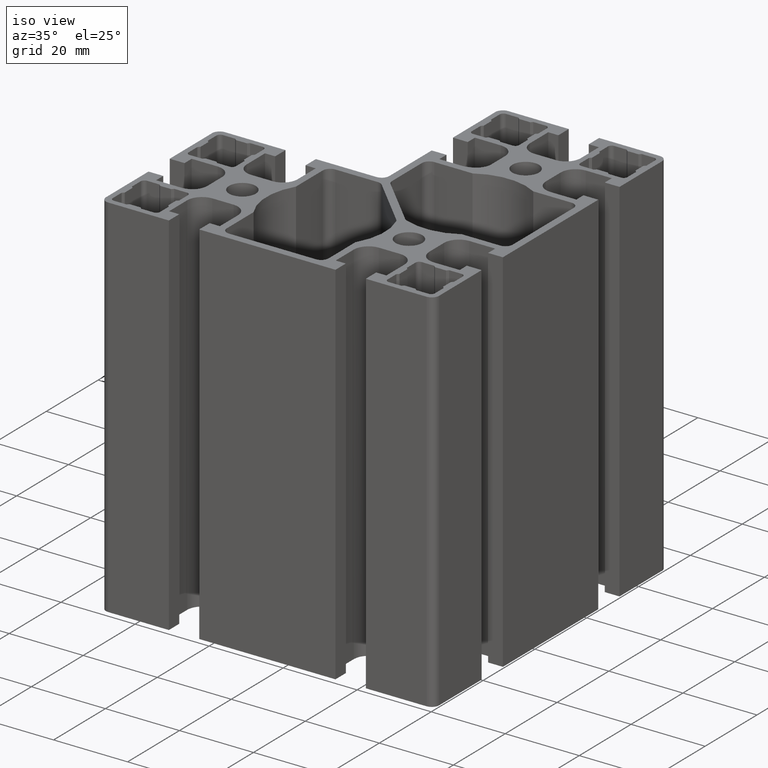
[diagram: clean part render]
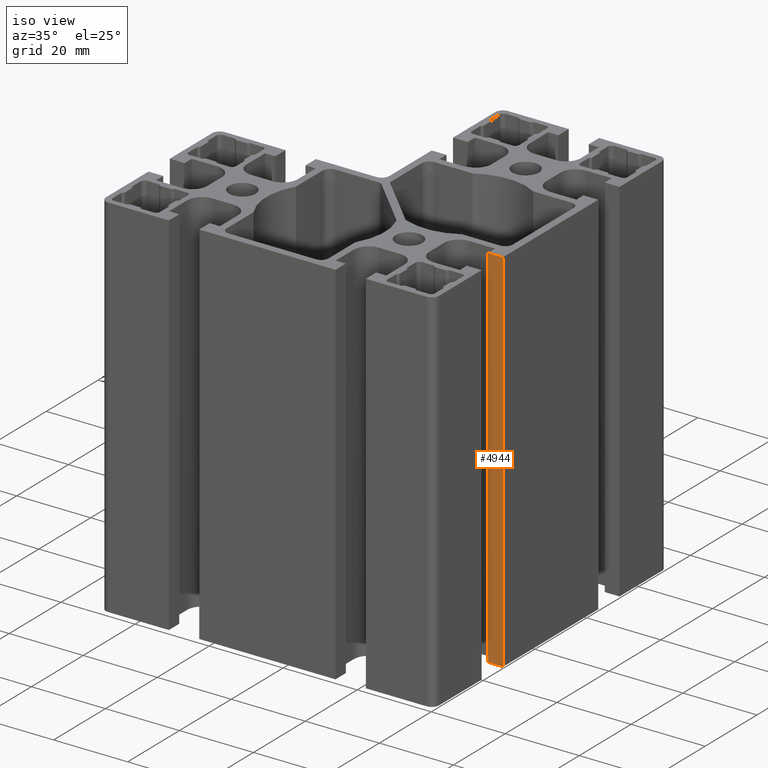
[diagram: same view with one face highlighted and labeled with its STEP entity id]
A machine part, iso view. The second image highlights one B-rep face of the part: STEP entity #4944.
In plain terms, the highlighted planar face has unit normal (0, -1, 0).
Its self-contained STEP definition (entity closure, byte-faithful):
#390=FACE_OUTER_BOUND('',#647,.T.);
#647=EDGE_LOOP('',(#4062,#4063,#4064,#4065));
#1117=LINE('',#7656,#1720);
#1208=LINE('',#7883,#1811);
#1209=LINE('',#7886,#1812);
#1210=LINE('',#7887,#1813);
#1720=VECTOR('',#6230,3.99999999999998);
#1811=VECTOR('',#6411,100.);
#1812=VECTOR('',#6414,3.99999999999998);
#1813=VECTOR('',#6415,100.);
#2256=VERTEX_POINT('',#7653);
#2257=VERTEX_POINT('',#7655);
#2348=VERTEX_POINT('',#7881);
#2349=VERTEX_POINT('',#7885);
#2886=EDGE_CURVE('',#2256,#2257,#1117,.T.);
#3000=EDGE_CURVE('',#2256,#2348,#1208,.T.);
#3001=EDGE_CURVE('',#2349,#2348,#1209,.T.);
#3002=EDGE_CURVE('',#2257,#2349,#1210,.T.);
#4062=ORIENTED_EDGE('',*,*,#3000,.T.);
#4063=ORIENTED_EDGE('',*,*,#3001,.F.);
#4064=ORIENTED_EDGE('',*,*,#3002,.F.);
#4065=ORIENTED_EDGE('',*,*,#2886,.F.);
#4718=PLANE('',#5292);
#4944=ADVANCED_FACE('',(#390),#4718,.T.);
#5292=AXIS2_PLACEMENT_3D('',#7884,#6412,#6413);
#6230=DIRECTION('',(-1.,0.,0.));
#6411=DIRECTION('',(0.,0.,1.));
#6412=DIRECTION('center_axis',(0.,-1.,0.));
#6413=DIRECTION('ref_axis',(1.,0.,0.));
#6414=DIRECTION('',(1.,0.,0.));
#6415=DIRECTION('',(0.,0.,1.));
#7653=CARTESIAN_POINT('',(22.5,4.10000000000158,-50.));
#7655=CARTESIAN_POINT('',(18.5,4.10000000000158,-50.));
#7656=CARTESIAN_POINT('',(18.5,4.10000000000158,-50.));
#7881=CARTESIAN_POINT('',(22.5,4.10000000000158,50.));
#7883=CARTESIAN_POINT('',(22.5,4.10000000000158,0.));
#7884=CARTESIAN_POINT('Origin',(18.5,4.10000000000158,0.));
#7885=CARTESIAN_POINT('',(18.5,4.10000000000158,50.));
#7886=CARTESIAN_POINT('',(18.5,4.10000000000158,50.));
#7887=CARTESIAN_POINT('',(18.5,4.10000000000158,0.));